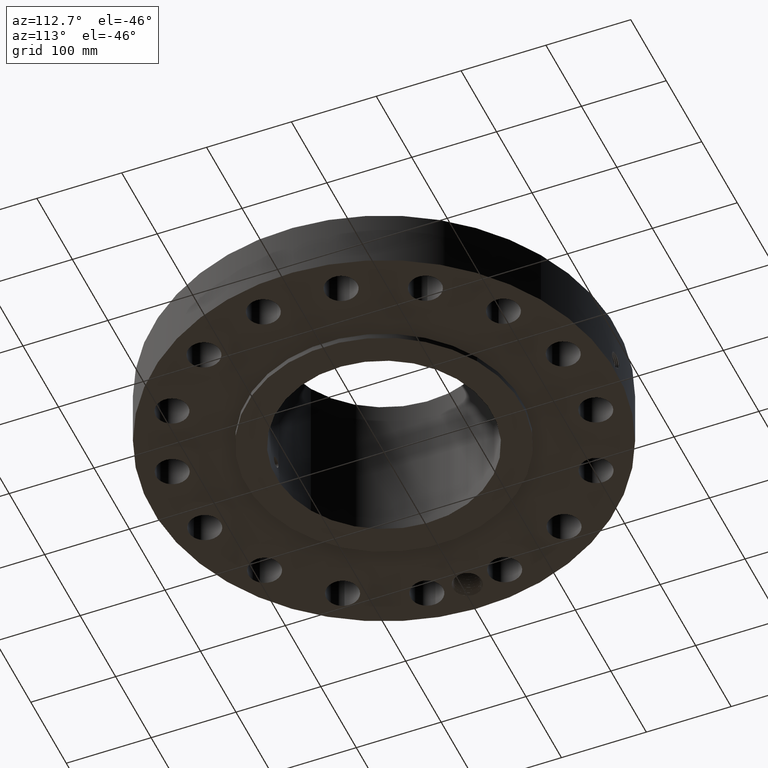
[diagram: clean part render]
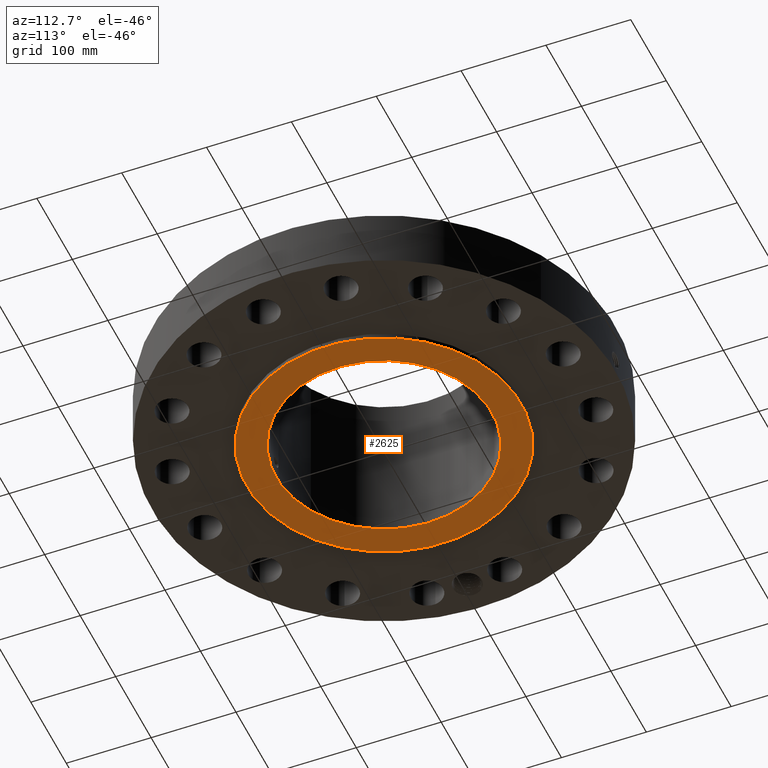
[diagram: same view with one face highlighted and labeled with its STEP entity id]
A machine part, auxiliary view. The second image highlights one B-rep face of the part: STEP entity #2625.
In plain terms, the highlighted planar face has unit normal (0, 0, -1).
Its self-contained STEP definition (entity closure, byte-faithful):
#1415=AXIS2_PLACEMENT_3D('Circle Axis2P3D',#1413,#1414,$) ;
#1441=AXIS2_PLACEMENT_3D('Circle Axis2P3D',#1439,#1440,$) ;
#2601=AXIS2_PLACEMENT_3D('Plane Axis2P3D',#2598,#2599,#2600) ;
#2609=AXIS2_PLACEMENT_3D('Circle Axis2P3D',#2607,#2608,$) ;
#2618=AXIS2_PLACEMENT_3D('Circle Axis2P3D',#2616,#2617,$) ;
#1413=CARTESIAN_POINT('Axis2P3D Location',(0.,0.,5.59482469102E-016)) ;
#1417=CARTESIAN_POINT('Vertex',(3.05633780861,5.59458883207,5.59482469102E-016)) ;
#1419=CARTESIAN_POINT('Vertex',(-3.05633780861,-5.59458883207,5.59482469102E-016)) ;
#1439=CARTESIAN_POINT('Axis2P3D Location',(0.,0.,5.59482469102E-016)) ;
#2598=CARTESIAN_POINT('Axis2P3D Location',(0.,5.01000000002,0.)) ;
#2607=CARTESIAN_POINT('Axis2P3D Location',(0.,0.,0.)) ;
#2611=CARTESIAN_POINT('Vertex',(2.40192194842,4.39668863509,-1.23086143203E-014)) ;
#2613=CARTESIAN_POINT('Vertex',(-2.40192194842,-4.39668863509,-1.23086143203E-014)) ;
#2616=CARTESIAN_POINT('Axis2P3D Location',(0.,0.,0.)) ;
#1414=DIRECTION('Axis2P3D Direction',(0.,0.,-0.0393700787402)) ;
#1440=DIRECTION('Axis2P3D Direction',(0.,0.,-0.0393700787402)) ;
#2599=DIRECTION('Axis2P3D Direction',(0.,0.,-0.0393700787402)) ;
#2600=DIRECTION('Axis2P3D XDirection',(0.0393700787402,0.,0.)) ;
#2608=DIRECTION('Axis2P3D Direction',(0.,0.,-0.0393700787402)) ;
#2617=DIRECTION('Axis2P3D Direction',(0.,0.,-0.0393700787402)) ;
#2604=ORIENTED_EDGE('',*,*,#1443,.T.) ;
#2605=ORIENTED_EDGE('',*,*,#1421,.T.) ;
#2622=ORIENTED_EDGE('',*,*,#2615,.F.) ;
#2623=ORIENTED_EDGE('',*,*,#2620,.F.) ;
#2624=FACE_BOUND('',#2621,.T.) ;
#2625=ADVANCED_FACE('PartBody',(#2606,#2624),#2602,.T.) ;
#1416=CIRCLE('generated circle',#1415,6.37500000003) ;
#1442=CIRCLE('generated circle',#1441,6.37500000003) ;
#2610=CIRCLE('generated circle',#2609,5.01000000002) ;
#2619=CIRCLE('generated circle',#2618,5.01000000002) ;
#1421=EDGE_CURVE('',#1418,#1420,#1416,.T.) ;
#1443=EDGE_CURVE('',#1420,#1418,#1442,.T.) ;
#2615=EDGE_CURVE('',#2612,#2614,#2610,.T.) ;
#2620=EDGE_CURVE('',#2614,#2612,#2619,.T.) ;
#2603=EDGE_LOOP('',(#2604,#2605)) ;
#2621=EDGE_LOOP('',(#2622,#2623)) ;
#2606=FACE_OUTER_BOUND('',#2603,.T.) ;
#2602=PLANE('',#2601) ;
#1418=VERTEX_POINT('',#1417) ;
#1420=VERTEX_POINT('',#1419) ;
#2612=VERTEX_POINT('',#2611) ;
#2614=VERTEX_POINT('',#2613) ;